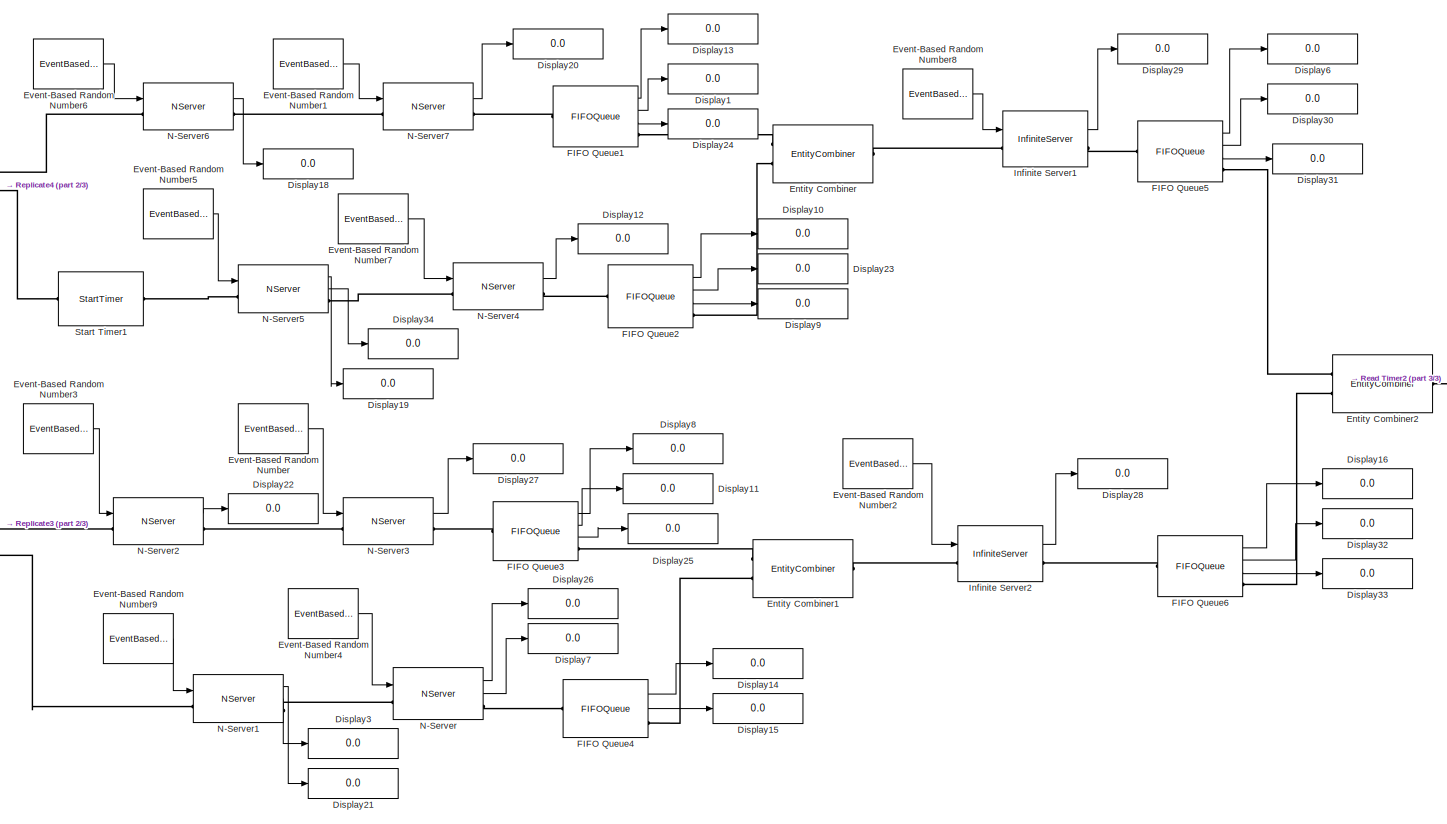
[diagram: root canvas - part 1/3, center side, full height]
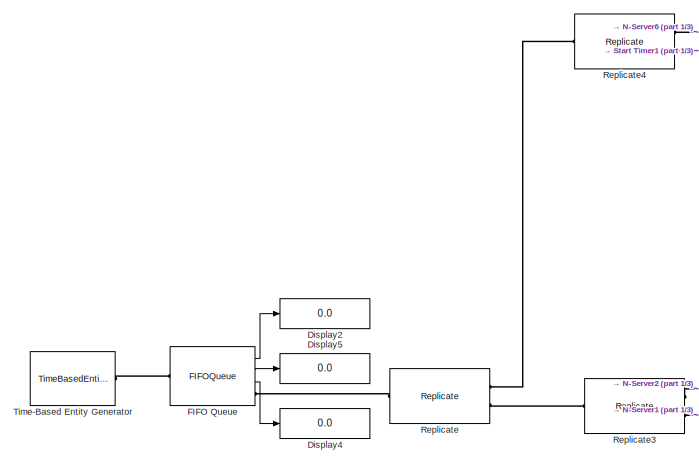
[diagram: root canvas - part 2/3, middle left region]
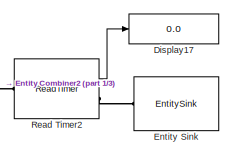
[diagram: root canvas - part 3/3, middle right region]
MODEL slx_ef6584b88b7f
KIND model
CONFIG AbsTol = auto
CONFIG EnableMultiTasking = off
CONFIG FixedStep = auto
CONFIG MaxStep = auto
CONFIG MinStep = auto
CONFIG RelTol = 1e-3
CONFIG SampleTimeConstraint = Unconstrained
CONFIG Solver = VariableStepAuto
CONFIG SolverName = VariableStepAuto
CONFIG StartTime = 0.0
CONFIG StopTime = 720000
BLOCK [Display] Display1
  Decimation = 1
  Ports = [1]
BLOCK [Display] Display10
  Decimation = 1
  Ports = [1]
BLOCK [Display] Display11
  Decimation = 1
  Ports = [1]
BLOCK [Display] Display12
  Decimation = 1
  Ports = [1]
BLOCK [Display] Display13
  Decimation = 1
  Ports = [1]
BLOCK [Display] Display14
  Decimation = 1
  Ports = [1]
BLOCK [Display] Display15
  Decimation = 1
  Ports = [1]
BLOCK [Display] Display16
  Decimation = 1
  Ports = [1]
BLOCK [Display] Display17
  Decimation = 1
  Ports = [1]
BLOCK [Display] Display18
  Decimation = 1
  Ports = [1]
BLOCK [Display] Display19
  Decimation = 1
  Ports = [1]
BLOCK [Display] Display2
  Decimation = 1
  Ports = [1]
BLOCK [Display] Display20
  Decimation = 1
  Ports = [1]
BLOCK [Display] Display21
  Decimation = 1
  Ports = [1]
BLOCK [Display] Display22
  Decimation = 1
  Ports = [1]
BLOCK [Display] Display23
  Decimation = 1
  Ports = [1]
BLOCK [Display] Display24
  Decimation = 1
  Ports = [1]
BLOCK [Display] Display25
  Decimation = 1
  Ports = [1]
BLOCK [Display] Display26
  Decimation = 1
  Ports = [1]
BLOCK [Display] Display27
  Decimation = 1
  Ports = [1]
BLOCK [Display] Display28
  Decimation = 1
  Ports = [1]
BLOCK [Display] Display29
  Decimation = 1
  Ports = [1]
BLOCK [Display] Display3
  Decimation = 1
  Ports = [1]
BLOCK [Display] Display30
  Decimation = 1
  Ports = [1]
BLOCK [Display] Display31
  Decimation = 1
  Ports = [1]
BLOCK [Display] Display32
  Decimation = 1
  Ports = [1]
BLOCK [Display] Display33
  Decimation = 1
  Ports = [1]
BLOCK [Display] Display34
  Decimation = 1
  Ports = [1]
BLOCK [Display] Display4
  Decimation = 1
  Ports = [1]
BLOCK [Display] Display5
  Decimation = 1
  Format = long
  Ports = [1]
BLOCK [Display] Display6
  Decimation = 1
  Ports = [1]
BLOCK [Display] Display7
  Decimation = 1
  Ports = [1]
BLOCK [Display] Display8
  Decimation = 1
  Ports = [1]
BLOCK [Display] Display9
  Decimation = 1
  Ports = [1]
BLOCK [EntityCombiner] Entity Combiner
  AttributeCopied = off
  NumberInputPorts = 2
  Ports = [0, 0, 0, 0, 0, 2, 1]
BLOCK [EntityCombiner] Entity Combiner1
  AttributeCopied = off
  NumberInputPorts = 2
  Ports = [0, 0, 0, 0, 0, 2, 1]
BLOCK [EntityCombiner] Entity Combiner2
  AttributeCopied = off
  NumberInputPorts = 2
  Ports = [0, 0, 0, 0, 0, 2, 1]
BLOCK [EntitySink] Entity Sink
  Ports = [0, 0, 0, 0, 0, 1]
BLOCK [EventBasedRandomNumber] Event-Based Random Number
  OutputPortMap = o0
  Ports = [0, 1]
  Seed = 23578
  meanExp = 189
  meanNorm = 315
  stdNorm = 5
BLOCK [EventBasedRandomNumber] Event-Based Random Number1
  OutputPortMap = o0
  Ports = [0, 1]
  Seed = 30012
  meanExp = 189
  meanNorm = 315
  stdNorm = 5
BLOCK [EventBasedRandomNumber] Event-Based Random Number2
  OutputPortMap = o0
  Ports = [0, 1]
  Seed = 58140
  meanExp = 6
BLOCK [EventBasedRandomNumber] Event-Based Random Number3
  OutputPortMap = o0
  Ports = [0, 1]
  Seed = 53727
  meanExp = 6
  meanNorm = 12
  stdNorm = 3
BLOCK [EventBasedRandomNumber] Event-Based Random Number4
  OutputPortMap = o0
  Ports = [0, 1]
  Seed = 11535
  meanExp = 479
  meanNorm = 7
  stdNorm = 38
BLOCK [EventBasedRandomNumber] Event-Based Random Number5
  OutputPortMap = o0
  Ports = [0, 1]
  Seed = 14752
  meanExp = 7
  meanNorm = 7
  stdNorm = 38
BLOCK [EventBasedRandomNumber] Event-Based Random Number6
  OutputPortMap = o0
  Ports = [0, 1]
  Seed = 50510
  meanExp = 6
  meanNorm = 12
  stdNorm = 3
BLOCK [EventBasedRandomNumber] Event-Based Random Number7
  OutputPortMap = o0
  Ports = [0, 1]
  Seed = 17969
  meanExp = 479
  meanNorm = 7
  stdNorm = 38
BLOCK [EventBasedRandomNumber] Event-Based Random Number8
  OutputPortMap = o0
  Ports = [0, 1]
  Seed = 58965
  meanExp = 6
BLOCK [EventBasedRandomNumber] Event-Based Random Number9
  OutputPortMap = o0
  Ports = [0, 1]
  Seed = 24403
  meanExp = 7
  meanNorm = 7
  stdNorm = 38
BLOCK [FIFOQueue] FIFO Queue
  Capacity = 10000
  OutputPortMap = o0,o2,o3
  Ports = [0, 3, 0, 0, 0, 1, 1]
  StatAverageQueueLength = on
  StatAverageWait = on
  StatNumberDeparted = on
BLOCK [FIFOQueue] FIFO Queue1
  Capacity = 1000
  OutputPortMap = o0,o2,o3
  Ports = [0, 3, 0, 0, 0, 1, 1]
  StatAverageQueueLength = on
  StatAverageWait = on
  StatNumberDeparted = on
BLOCK [FIFOQueue] FIFO Queue2
  Capacity = 1000
  OutputPortMap = o0,o2,o3
  Ports = [0, 3, 0, 0, 0, 1, 1]
  StatAverageQueueLength = on
  StatAverageWait = on
  StatNumberDeparted = on
BLOCK [FIFOQueue] FIFO Queue3
  Capacity = 1000
  OutputPortMap = o0,o2,o3
  Ports = [0, 3, 0, 0, 0, 1, 1]
  StatAverageQueueLength = on
  StatAverageWait = on
  StatNumberDeparted = on
BLOCK [FIFOQueue] FIFO Queue4
  Capacity = 1000
  OutputPortMap = o2,o3
  Ports = [0, 2, 0, 0, 0, 1, 1]
  StatAverageQueueLength = on
  StatAverageWait = on
BLOCK [FIFOQueue] FIFO Queue5
  OutputPortMap = o0,o2,o3
  Ports = [0, 3, 0, 0, 0, 1, 1]
  StatAverageQueueLength = on
  StatAverageWait = on
  StatNumberDeparted = on
BLOCK [FIFOQueue] FIFO Queue6
  OutputPortMap = o0,o2,o3
  Ports = [0, 3, 0, 0, 0, 1, 1]
  StatAverageQueueLength = on
  StatAverageWait = on
  StatNumberDeparted = on
BLOCK [InfiniteServer] Infinite Server1
  InputPortMap = u0
  OutputPortMap = o4
  Ports = [1, 1, 0, 0, 0, 1, 1]
  ServiceTimeFrom = Signal port t
  StatAverageWait = on
BLOCK [InfiniteServer] Infinite Server2
  InputPortMap = u0
  OutputPortMap = o4
  Ports = [1, 1, 0, 0, 0, 1, 1]
  ServiceTimeFrom = Signal port t
  StatAverageWait = on
BLOCK [NServer] N-Server
  InputPortMap = u0
  NumberOfServers = 4
  OutputPortMap = o4,o5
  Ports = [1, 2, 0, 0, 0, 1, 1]
  ServiceTimeFrom = Signal port t
  StatAverageWait = on
  StatUtilization = on
BLOCK [NServer] N-Server1
  InputPortMap = u0
  NumberOfServers = 4
  OutputPortMap = o4,o5
  Ports = [1, 2, 0, 0, 0, 1, 1]
  ServiceTimeFrom = Signal port t
  StatAverageWait = on
  StatUtilization = on
BLOCK [NServer] N-Server2
  InputPortMap = u0
  NumberOfServers = 4
  OutputPortMap = o4
  Ports = [1, 1, 0, 0, 0, 1, 1]
  ServiceTimeFrom = Signal port t
  StatAverageWait = on
BLOCK [NServer] N-Server3
  InputPortMap = u0
  NumberOfServers = 4
  OutputPortMap = o4
  Ports = [1, 1, 0, 0, 0, 1, 1]
  ServiceTimeFrom = Signal port t
  StatAverageWait = on
BLOCK [NServer] N-Server4
  InputPortMap = u0
  NumberOfServers = 4
  OutputPortMap = o5
  Ports = [1, 1, 0, 0, 0, 1, 1]
  ServiceTimeFrom = Signal port t
  StatUtilization = on
BLOCK [NServer] N-Server5
  InputPortMap = u0
  NumberOfServers = 4
  OutputPortMap = o4,o5
  Ports = [1, 2, 0, 0, 0, 1, 1]
  ServiceTimeFrom = Signal port t
  StatAverageWait = on
  StatUtilization = on
BLOCK [NServer] N-Server6
  InputPortMap = u0
  NumberOfServers = 4
  OutputPortMap = o4
  Ports = [1, 1, 0, 0, 0, 1, 1]
  ServiceTimeFrom = Signal port t
  StatAverageWait = on
BLOCK [NServer] N-Server7
  InputPortMap = u0
  NumberOfServers = 4
  OutputPortMap = o5
  Ports = [1, 1, 0, 0, 0, 1, 1]
  ServiceTimeFrom = Signal port t
  StatUtilization = on
BLOCK [ReadTimer] Read Timer2
  OutputPortMap = o3
  Ports = [0, 1, 0, 0, 0, 1, 1]
  StatAverageTimeElapsed = on
  TimerTag = T2
BLOCK [Replicate] Replicate
  NumberOutputPorts = 2
  Ports = [0, 0, 0, 0, 0, 1, 2]
BLOCK [Replicate] Replicate3
  NumberOutputPorts = 2
  Ports = [0, 0, 0, 0, 0, 1, 2]
BLOCK [Replicate] Replicate4
  NumberOutputPorts = 2
  Ports = [0, 0, 0, 0, 0, 1, 2]
BLOCK [StartTimer] Start Timer1
  Ports = [0, 0, 0, 0, 0, 1, 1]
  TimerTag = T2
BLOCK [TimeBasedEntityGenerator] Time-Based Entity Generator
  Distribution = Exponential
  InitialSeed = 40859
  Mean = 3600/30
  Ports = [0, 0, 0, 0, 0, 0, 1]
LINE Event-Based Random Number1:1 -> N-Server7:1
LINE Event-Based Random Number2:1 -> Infinite Server2:1
LINE Event-Based Random Number3:1 -> N-Server2:1
LINE Event-Based Random Number4:1 -> N-Server:1
LINE Event-Based Random Number5:1 -> N-Server5:1
LINE Event-Based Random Number6:1 -> N-Server6:1
LINE Event-Based Random Number7:1 -> N-Server4:1
LINE Event-Based Random Number8:1 -> Infinite Server1:1
LINE Event-Based Random Number9:1 -> N-Server1:1
LINE Event-Based Random Number:1 -> N-Server3:1
LINE FIFO Queue1:1 -> Display13:1
LINE FIFO Queue1:2 -> Display1:1
LINE FIFO Queue1:3 -> Display24:1
LINE FIFO Queue2:1 -> Display10:1
LINE FIFO Queue2:2 -> Display23:1
LINE FIFO Queue2:3 -> Display9:1
LINE FIFO Queue3:1 -> Display8:1
LINE FIFO Queue3:2 -> Display11:1
LINE FIFO Queue3:3 -> Display25:1
LINE FIFO Queue4:1 -> Display14:1
LINE FIFO Queue4:2 -> Display15:1
LINE FIFO Queue5:1 -> Display6:1
LINE FIFO Queue5:2 -> Display30:1
LINE FIFO Queue5:3 -> Display31:1
LINE FIFO Queue6:1 -> Display16:1
LINE FIFO Queue6:2 -> Display32:1
LINE FIFO Queue6:3 -> Display33:1
LINE FIFO Queue:1 -> Display2:1
LINE FIFO Queue:2 -> Display5:1
LINE FIFO Queue:3 -> Display4:1
LINE Infinite Server1:1 -> Display29:1
LINE Infinite Server2:1 -> Display28:1
LINE N-Server1:1 -> Display21:1
LINE N-Server1:2 -> Display3:1
LINE N-Server2:1 -> Display22:1
LINE N-Server3:1 -> Display27:1
LINE N-Server4:1 -> Display12:1
LINE N-Server5:1 -> Display19:1
LINE N-Server5:2 -> Display34:1
LINE N-Server6:1 -> Display18:1
LINE N-Server7:1 -> Display20:1
LINE N-Server:1 -> Display26:1
LINE N-Server:2 -> Display7:1
LINE Read Timer2:1 -> Display17:1
PLINE Entity Combiner1:LConn1 -- FIFO Queue3:RConn1
PLINE Entity Combiner1:LConn2 -- FIFO Queue4:RConn1
PLINE Entity Combiner1:RConn1 -- Infinite Server2:LConn1
PLINE Entity Combiner2:LConn1 -- FIFO Queue5:RConn1
PLINE Entity Combiner2:LConn2 -- FIFO Queue6:RConn1
PLINE Entity Combiner2:RConn1 -- Read Timer2:LConn1
PLINE Entity Combiner:LConn1 -- FIFO Queue1:RConn1
PLINE Entity Combiner:LConn2 -- FIFO Queue2:RConn1
PLINE Entity Combiner:RConn1 -- Infinite Server1:LConn1
PLINE Entity Sink:LConn1 -- Read Timer2:RConn1
PLINE FIFO Queue1:LConn1 -- N-Server7:RConn1
PLINE FIFO Queue2:LConn1 -- N-Server4:RConn1
PLINE FIFO Queue3:LConn1 -- N-Server3:RConn1
PLINE FIFO Queue4:LConn1 -- N-Server:RConn1
PLINE FIFO Queue5:LConn1 -- Infinite Server1:RConn1
PLINE FIFO Queue6:LConn1 -- Infinite Server2:RConn1
PLINE FIFO Queue:LConn1 -- Time-Based Entity Generator:RConn1
PLINE FIFO Queue:RConn1 -- Replicate:LConn1
PLINE N-Server1:LConn1 -- Replicate3:RConn2
PLINE N-Server1:RConn1 -- N-Server:LConn1
PLINE N-Server2:LConn1 -- Replicate3:RConn1
PLINE N-Server2:RConn1 -- N-Server3:LConn1
PLINE N-Server4:LConn1 -- N-Server5:RConn1
PLINE N-Server5:LConn1 -- Start Timer1:RConn1
PLINE N-Server6:LConn1 -- Replicate4:RConn1
PLINE N-Server6:RConn1 -- N-Server7:LConn1
PLINE Replicate3:LConn1 -- Replicate:RConn2
PLINE Replicate4:LConn1 -- Replicate:RConn1
PLINE Replicate4:RConn2 -- Start Timer1:LConn1
